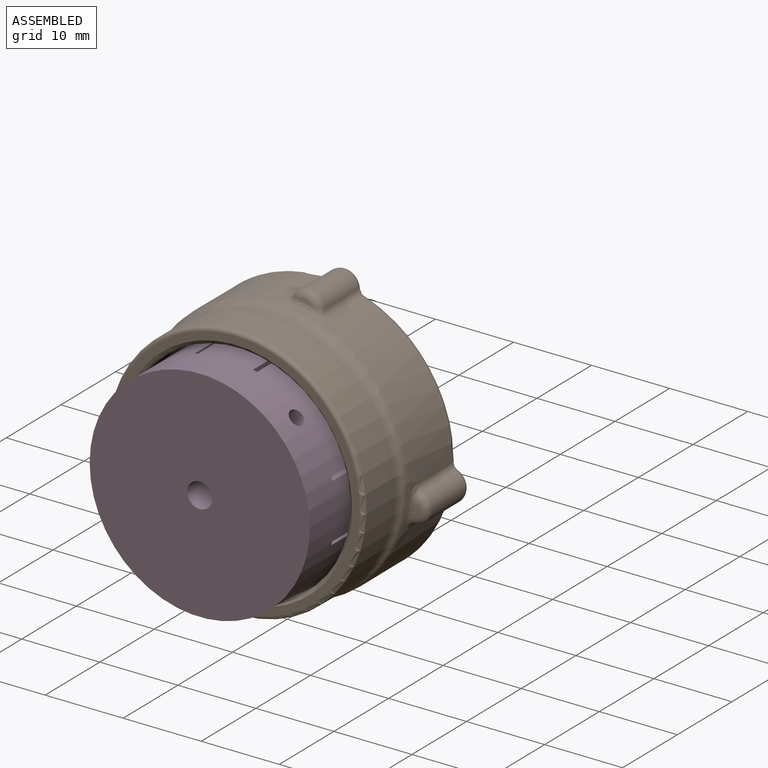
[diagram: assembled view]
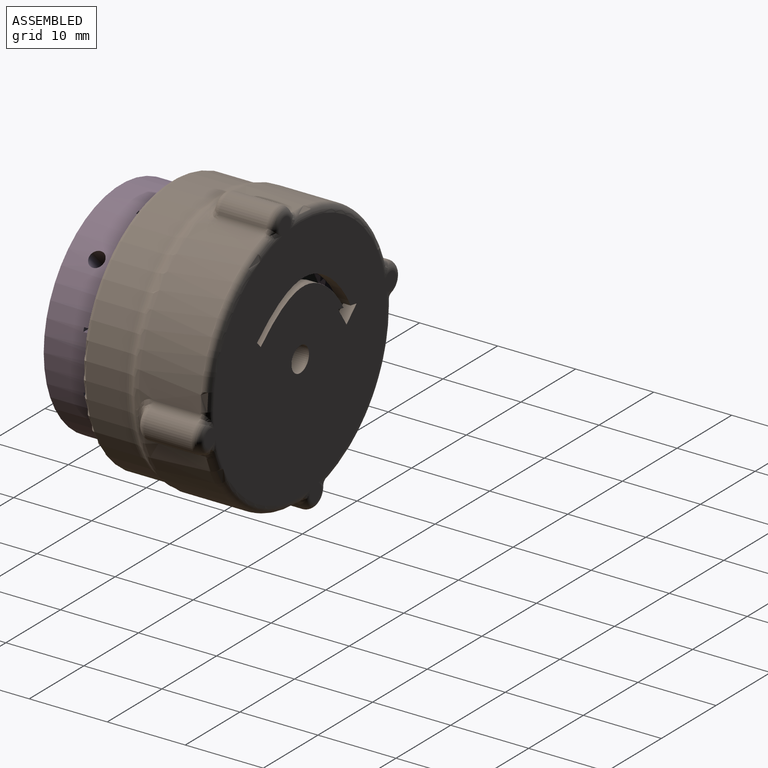
[diagram: assembled view, second angle]
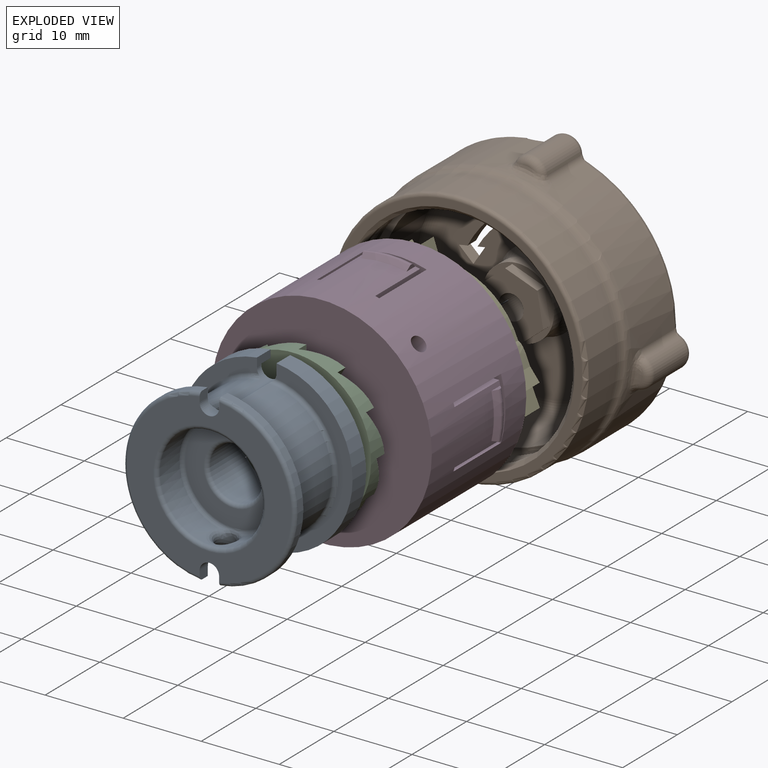
[diagram: exploded view]
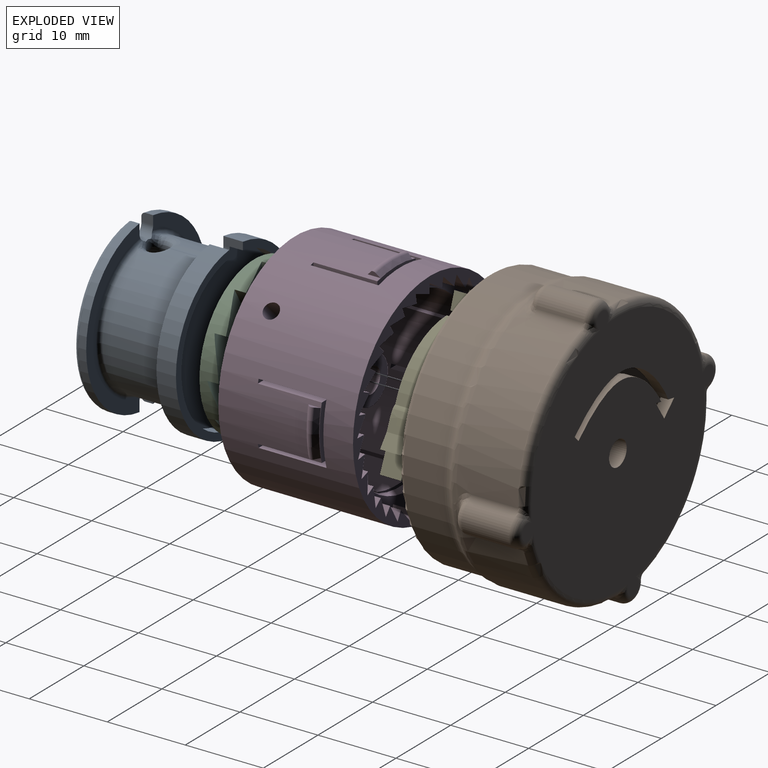
[diagram: exploded view, second angle]
ASSEMBLY  parts=5 mates=4
PART A: 52 faces, bbox 23.8x13x23.7 mm
  f0: cylinder r=1.25mm len=6.65mm, axis (0,1,0), area 11mm2, adj f10,f11,f12,f19,f23,f24,f25,f33
  f1: cylinder r=1.25mm len=2.5mm, axis (0,1,0), area 6.3mm2, adj f13,f14,f26,f27,f30,f34,f48,f49
  f2: cylinder r=3.4mm len=6.8mm, axis (0,-1,0), area 134.6mm2, adj f3,f19
  f3: torus R=3.9mm, axis (0,-1,0), area 17.7mm2, adj f2,f31
  f4: torus R=6.2mm, axis (0,-1,0), area 30.4mm2, adj f5,f31,f36,f41
  f5: cylinder r=6.7mm len=13.4mm, axis (0,-1,0), area 125.7mm2, adj f4,f6,f35,f40
  f6: torus R=7.2mm, axis (0,-1,0), area 34mm2, adj f5,f30
  f7: cylinder r=10mm len=19.84mm, axis (0,-1,0), area 49.1mm2, adj f8,f19,f46,f50
  f8: plane 21.86x9.75mm, normal (0,1,0), area 30.5mm2, adj f7,f9,f46,f50
  f9: cylinder r=11mm len=21.86mm, axis (0,-1,0), area 80.1mm2, adj f8,f10,f46,f50
  f10: plane 21.86x9.91mm, normal (0,-1,0), area 52.7mm2, adj f0,f9,f11,f46,f47,f50
  f11: torus R=9.2mm, axis (0,-1,0), area 20.6mm2, adj f0,f10,f25,f47
  f12: cylinder r=8.7mm len=17.35mm, axis (0,-1,0), area 198.5mm2, adj f0,f13,f24,f33,f38,f47
  f13: torus R=9.2mm, axis (0,-1,0), area 19.9mm2, adj f1,f12,f27,f34,f39,f42
  f14: plane 21.86x9.91mm, normal (0,1,0), area 52.7mm2, adj f1,f15,f26,f42,f43,f49
  f15: cylinder r=11mm len=21.86mm, axis (0,-1,0), area 32.1mm2, adj f14,f16,f43,f49
  f16: torus R=10.5mm, axis (0,-1,0), area 24.7mm2, adj f15,f30,f43,f49
  f17: cylinder r=1.25mm len=2.24mm, axis (0,0,1), area 0mm2, adj f38,f41
  f18: cylinder r=1.25mm len=2.24mm, axis (0,0,-1), area 0mm2, adj f33,f36
  f19: plane 20x19.84mm, normal (0,1,0), area 271.8mm2, adj f0,f2,f7,f20,f45,f46,f47,f50
  f20: cylinder r=10mm len=19.84mm, axis (0,-1,0), area 49.1mm2, adj f19,f21,f45,f51
  f21: plane 21.86x9.75mm, normal (0,1,0), area 30.5mm2, adj f20,f22,f45,f51
  f22: cylinder r=11mm len=21.86mm, axis (0,-1,0), area 80.1mm2, adj f21,f23,f45,f51
  f23: plane 21.86x9.91mm, normal (0,-1,0), area 52.7mm2, adj f0,f22,f24,f45,f47,f51
  f24: torus R=9.2mm, axis (0,-1,0), area 20.6mm2, adj f0,f12,f23,f47
  f25: cylinder r=8.7mm len=17.35mm, axis (0,-1,0), area 198.5mm2, adj f0,f11,f26,f33,f38,f47
  f26: torus R=9.2mm, axis (0,-1,0), area 19.9mm2, adj f1,f14,f25,f34,f39,f42
  f27: plane 21.86x9.91mm, normal (0,1,0), area 52.7mm2, adj f1,f13,f28,f42,f44,f48
  f28: cylinder r=11mm len=21.86mm, axis (0,-1,0), area 32.1mm2, adj f27,f29,f44,f48
  f29: torus R=10.5mm, axis (0,-1,0), area 24.7mm2, adj f28,f30,f44,f48
  f30: plane 21x20.85mm, normal (0,-1,0), area 175mm2, adj f1,f6,f16,f29,f42,f43,f44,f48
  f31: plane 12.4x12.4mm, normal (0,-1,0), area 73mm2, adj f3,f4
  f32: cylinder r=1.25mm len=2.24mm, axis (0,0,-1), area 0mm2, adj f34,f35
  f33: bspline ~5.1x3.25mm, area 11.3mm2, adj f0,f12,f18,f25,f34,f35
  f34: bspline ~4.55x1.49mm, area 3.4mm2, adj f1,f13,f26,f32,f33
  f35: bspline ~3.93x3.25mm, area 9mm2, adj f5,f32,f33,f36
  f36: bspline ~3.51x0.98mm, area 2.7mm2, adj f4,f18,f35
  f37: cylinder r=1.25mm len=2.24mm, axis (0,0,1), area 0mm2, adj f39,f40
  f38: bspline ~5.08x3.25mm, area 11.1mm2, adj f12,f17,f25,f39,f40,f47
  f39: bspline ~4.55x1.49mm, area 3.8mm2, adj f13,f26,f37,f38,f42
  f40: bspline ~3.93x3.25mm, area 9mm2, adj f5,f37,f38,f41
  f41: bspline ~3.51x0.98mm, area 2.7mm2, adj f4,f17,f40
  f42: cylinder r=1.25mm len=2.5mm, axis (0,1,0), area 6.2mm2, adj f13,f14,f26,f27,f30,f39,f43,f44
  f43: plane 1.53x1.2mm, normal (1,0,0), area 1.7mm2, adj f14,f15,f16,f30,f42
  f44: plane 1.53x1.2mm, normal (-1,0,0), area 1.7mm2, adj f27,f28,f29,f30,f42
  f45: plane 2.5x1.18mm, normal (-1,0,0), area 2.7mm2, adj f19,f20,f21,f22,f23,f47
  f46: plane 2.5x1.18mm, normal (1,0,0), area 2.7mm2, adj f7,f8,f9,f10,f19,f47
  f47: cylinder r=1.25mm len=6.65mm, axis (0,1,0), area 11.2mm2, adj f10,f11,f12,f19,f23,f24,f25,f38
  f48: plane 1.53x1.2mm, normal (-1,0,0), area 1.7mm2, adj f1,f27,f28,f29,f30
  f49: plane 1.53x1.2mm, normal (1,0,0), area 1.7mm2, adj f1,f14,f15,f16,f30
  f50: plane 2.5x1.18mm, normal (1,0,0), area 2.7mm2, adj f0,f7,f8,f9,f10,f19
  f51: plane 2.5x1.18mm, normal (-1,0,0), area 2.7mm2, adj f0,f19,f20,f21,f22,f23
PART B: 88 faces, bbox 36.8x16.5x36.8 mm
  f0: torus R=7.02mm, axis (0,-1,0), area 76.8mm2, adj f23,f31
  f1: cylinder r=1mm len=6mm, axis (0,-1,0), area 6.6mm2, adj f10,f29,f74,f75
  f2: cylinder r=1mm len=6mm, axis (0,1,0), area 6.6mm2, adj f26,f43,f56,f57
  f3: torus R=1.06mm, axis (0,1,0), area 5.8mm2, adj f9,f68,f69,f70,f71
  f4: torus R=1.06mm, axis (0,1,0), area 5.8mm2, adj f10,f75,f76,f77,f78
  f5: torus R=1.06mm, axis (0,1,0), area 8.3mm2, adj f35,f44,f58,f65
  f6: torus R=1.06mm, axis (0,1,0), area 8.3mm2, adj f10,f35,f74,f80
  f7: torus R=15.9mm, axis (0,1,0), area 35.5mm2, adj f29,f35,f73,f74
  f8: torus R=1.06mm, axis (0,1,0), area 9.8mm2, adj f9,f35,f66,f73
  f9: cylinder r=2.06mm len=6mm, axis (0,1,0), area 31.4mm2, adj f3,f8,f67,f72
  f10: cylinder r=2.06mm len=6mm, axis (0,1,0), area 31.4mm2, adj f1,f4,f6,f79
  f11: cylinder r=14.44mm len=28.88mm, axis (0,-1,0), area 607.8mm2, adj f24,f34
  f12: torus R=14.64mm, axis (0,-1,0), area 187.2mm2, adj f13,f34
  f13: torus R=15.39mm, axis (0,-1,0), area 72.9mm2, adj f12,f14
  f14: cylinder r=14.64mm len=29.28mm, axis (0,-1,0), area 83mm2, adj f13,f15
  f15: torus R=15.39mm, axis (0,-1,0), area 72.9mm2, adj f14,f16
  f16: torus R=14.64mm, axis (0,-1,0), area 187.2mm2, adj f15,f33
  f17: cylinder r=14.44mm len=28.88mm, axis (0,-1,0), area 68mm2, adj f18,f33
  f18: cone r=14.94mm half-angle=45deg, axis (0,-1,0), area 65.3mm2, adj f17,f32
  f19: torus R=15.94mm, axis (0,-1,0), area 80.2mm2, adj f20,f32
  f20: cylinder r=16.44mm len=32.88mm, axis (0,-1,0), area 540.7mm2, adj f19,f21
  f21: torus R=18.44mm, axis (0,-1,0), area 100.6mm2, adj f20,f22
  f22: torus R=14.9mm, axis (0,-1,0), area 101.9mm2, adj f21,f26,f27,f28,f29,f54,f61,f69
  f23: cylinder r=4.6mm len=9.2mm, axis (0,-1,0), area 43.4mm2, adj f0,f30
  f24: torus R=12.44mm, axis (0,-1,0), area 270.7mm2, adj f11,f31
  f25: cylinder r=1.6mm len=6.73mm, axis (0,-1,0), area 67.7mm2, adj f35,f36
  f26: cylinder r=16.9mm len=19.94mm, axis (0,-1,0), area 167.1mm2, adj f2,f22,f47,f55,f56,f59,f60
  f27: cylinder r=16.9mm len=19.94mm, axis (0,-1,0), area 168.4mm2, adj f22,f46,f52,f53,f78,f79
  f28: cylinder r=16.9mm len=19.94mm, axis (0,-1,0), area 167.1mm2, adj f22,f45,f62,f63,f64,f67,f68
  f29: cylinder r=16.9mm len=19.94mm, axis (0,-1,0), area 167.1mm2, adj f1,f7,f22,f70,f71,f72,f75,f76
  f30: plane 9.2x9.2mm, normal (0,-1,0), area 16.5mm2, adj f23,f37,f38,f39,f40,f41,f42
  f31: plane 24.88x24.88mm, normal (0,-1,0), area 376.7mm2, adj f0,f24,f81,f82,f83,f84,f85,f86
  f32: plane 31.88x31.88mm, normal (0,-1,0), area 97mm2, adj f18,f19
  f33: plane 29.28x29.28mm, normal (0,1,0), area 18.3mm2, adj f16,f17
  f34: plane 29.28x29.28mm, normal (0,-1,0), area 18.3mm2, adj f11,f12
  f35: plane 33.66x33.66mm, normal (0,1,0), area 776.4mm2, adj f5,f6,f7,f8,f25,f45,f46,f47
  f36: plane 8.78x7.6mm, normal (0,-1,0), area 42mm2, adj f25,f37,f38,f39,f40,f41,f42
  f37: plane 3.8x2.19mm, normal (0.5,0,0.87), area 5.7mm2, adj f30,f36,f38,f42
  f38: plane 3.8x2.19mm, normal (-0.5,0,0.87), area 5.7mm2, adj f30,f36,f37,f39
  f39: plane 4.39x1.3mm, normal (-1,0,0), area 5.7mm2, adj f30,f36,f38,f40
  f40: plane 3.8x2.19mm, normal (-0.5,0,-0.87), area 5.7mm2, adj f30,f36,f39,f41
  f41: plane 3.8x2.19mm, normal (0.5,0,-0.87), area 5.7mm2, adj f30,f36,f40,f42
  f42: plane 4.39x1.3mm, normal (1,0,0), area 5.7mm2, adj f30,f36,f37,f41
  f43: cylinder r=2.06mm len=6mm, axis (0,1,0), area 31.4mm2, adj f2,f48,f49,f52
  f44: cylinder r=2.06mm len=6mm, axis (0,1,0), area 31.4mm2, adj f5,f50,f59,f64
  f45: torus R=15.9mm, axis (0,1,0), area 35.5mm2, adj f28,f35,f65,f66
  f46: torus R=15.9mm, axis (0,1,0), area 35.5mm2, adj f27,f35,f51,f80
  f47: torus R=15.9mm, axis (0,1,0), area 35.5mm2, adj f26,f35,f57,f58
  f48: torus R=1.06mm, axis (0,1,0), area 9.8mm2, adj f35,f43,f51,f57
  f49: torus R=1.06mm, axis (0,1,0), area 5.8mm2, adj f43,f53,f54,f55,f56
  f50: torus R=1.06mm, axis (0,1,0), area 5.8mm2, adj f44,f60,f61,f62,f63
  f51: bspline ~2.28x1.05mm, area 0.9mm2, adj f46,f48,f52
  f52: cylinder r=1mm len=6mm, axis (0,-1,0), area 6.6mm2, adj f27,f43,f51,f53
  f53: bspline ~1.88x1.53mm, area 2.3mm2, adj f27,f49,f52,f54
  f54: bspline ~2.47x1.53mm, area 3.3mm2, adj f22,f49,f53,f55
  f55: cylinder r=1mm len=0.95mm, axis (0.93,0.26,-0.26), area 0mm2, adj f26,f49,f54,f56
  f56: bspline ~1.88x1.87mm, area 2.2mm2, adj f2,f26,f49,f55
  f57: bspline ~1.84x1.75mm, area 0.9mm2, adj f2,f47,f48
  f58: bspline ~2.28x1.05mm, area 0.9mm2, adj f5,f47,f59
  f59: cylinder r=1mm len=6mm, axis (0,-1,0), area 6.6mm2, adj f26,f44,f58,f60
  f60: bspline ~1.88x1.53mm, area 2.3mm2, adj f26,f50,f59,f61
  f61: bspline ~2.47x1.53mm, area 3.3mm2, adj f22,f50,f60,f62
  f62: cylinder r=1mm len=0.95mm, axis (0.26,0.26,0.93), area 0mm2, adj f28,f50,f61,f63
  f63: bspline ~1.88x1.87mm, area 2.2mm2, adj f28,f50,f62,f64
  f64: cylinder r=1mm len=6mm, axis (0,1,0), area 6.6mm2, adj f28,f44,f63,f65
  f65: bspline ~1.84x1.75mm, area 1.4mm2, adj f5,f45,f64
  f66: bspline ~2.28x1.05mm, area 0.9mm2, adj f8,f45,f67
  f67: cylinder r=1mm len=6mm, axis (0,-1,0), area 6.6mm2, adj f9,f28,f66,f68
  f68: bspline ~1.88x1.53mm, area 2.3mm2, adj f3,f28,f67,f69
  f69: bspline ~2.47x1.53mm, area 3.3mm2, adj f3,f22,f68,f70
  f70: cylinder r=1mm len=0.95mm, axis (-0.93,0.26,0.26), area 0mm2, adj f3,f29,f69,f71
  f71: bspline ~1.88x1.87mm, area 2.2mm2, adj f3,f29,f70,f72
  f72: cylinder r=1mm len=6mm, axis (0,1,0), area 6.6mm2, adj f9,f29,f71,f73
  f73: bspline ~1.84x1.75mm, area 0.9mm2, adj f7,f8,f72
  f74: bspline ~2.28x1.05mm, area 0.9mm2, adj f1,f6,f7
  f75: bspline ~1.87x1.46mm, area 2.2mm2, adj f1,f4,f29,f76
  f76: cylinder r=1mm len=0.96mm, axis (-0.4,-0.25,-0.88), area 0mm2, adj f4,f29,f75,f77
  f77: bspline ~2.47x1.53mm, area 3.3mm2, adj f4,f22,f76,f78
  f78: bspline ~1.91x1.88mm, area 2.3mm2, adj f4,f27,f77,f79
  f79: cylinder r=1mm len=6mm, axis (0,1,0), area 6.6mm2, adj f10,f27,f78,f80
  f80: bspline ~1.84x1.75mm, area 1.4mm2, adj f6,f46,f79
  f81: extruded ~15.16x5.43mm, area 28.3mm2, adj f31,f35,f82,f87
  f82: plane 1.53x1.01mm, normal (0,0,-1), area 1.5mm2, adj f31,f35,f81,f83
  f83: plane 2.03x1.9mm, normal (-0.73,0,0.68), area 4.3mm2, adj f31,f35,f82,f84
  f84: plane 2.03x1.53mm, normal (0.8,0,0.6), area 3.9mm2, adj f31,f35,f83,f85
  f85: plane 1.53x1.12mm, normal (0,0,-1), area 1.7mm2, adj f31,f35,f84,f86
  f86: extruded ~17.24x5.83mm, area 32.3mm2, adj f31,f35,f85,f87
  f87: plane 1.53x0.79mm, normal (-0.61,0,0.79), area 1.5mm2, adj f31,f35,f81,f86
PART C: 52 faces, bbox 21.9x21.9x2.5 mm
  f0: cylinder r=10mm len=20mm, axis (0,0,-1), area 117.5mm2, adj f14,f16,f17,f18,f19,f20,f21,f22
  f1: cylinder r=6mm len=3mm, axis (0,0,-1), area 1.8mm2, adj f12,f16,f29,f46
  f2: cylinder r=6mm len=2.2mm, axis (0,0,-1), area 1.8mm2, adj f12,f18,f33,f47
  f3: cylinder r=6mm len=3mm, axis (0,0,-1), area 1.8mm2, adj f12,f21,f32,f48
  f4: cylinder r=6mm len=3mm, axis (0,0,-1), area 1.8mm2, adj f12,f22,f30,f49
  f5: cylinder r=6mm len=2.2mm, axis (0,0,-1), area 1.8mm2, adj f12,f20,f31,f50
  f6: cylinder r=6mm len=3mm, axis (0,0,-1), area 1.8mm2, adj f12,f19,f37,f51
  f7: cylinder r=6mm len=3mm, axis (0,0,-1), area 1.8mm2, adj f12,f25,f36,f40
  f8: cylinder r=6mm len=2.2mm, axis (0,0,-1), area 1.8mm2, adj f12,f26,f34,f41
  f9: cylinder r=6mm len=3mm, axis (0,0,-1), area 1.8mm2, adj f12,f23,f35,f42
  f10: cylinder r=6mm len=3mm, axis (0,0,-1), area 1.8mm2, adj f12,f17,f28,f45
  f11: cylinder r=6mm len=3mm, axis (0,0,-1), area 1.8mm2, adj f12,f24,f39,f43
  f12: plane 12x12mm, normal (0,0,1), area 76.8mm2, adj f1,f2,f3,f4,f5,f6,f7,f8
  f13: cylinder r=3.4mm len=6.8mm, axis (0,0,-1), area 21.4mm2, adj f12,f14
  f14: plane 20x20mm, normal (0,0,-1), area 277.8mm2, adj f0,f13
  f15: cylinder r=6mm len=2.2mm, axis (0,0,-1), area 1.8mm2, adj f12,f27,f38,f44
  f16: plane 4.42x2.18mm, normal (-0.35,0,0.94), area 9.4mm2, adj f0,f1,f17,f46
  f17: plane 4.03x1.48mm, normal (1,0,0), area 5.2mm2, adj f0,f10,f16,f45
  f18: plane 4.91x3.77mm, normal (-0.3,-0.17,0.94), area 9.4mm2, adj f0,f2,f29,f47
  f19: plane 4.35x4.09mm, normal (0.3,-0.17,0.94), area 9.4mm2, adj f0,f6,f31,f51
  f20: plane 4.91x3.77mm, normal (0.17,-0.3,0.94), area 9.4mm2, adj f0,f5,f30,f50
  f21: plane 4.35x4.09mm, normal (-0.17,-0.3,0.94), area 9.4mm2, adj f0,f3,f33,f48
  f22: plane 4.42x2.18mm, normal (0,-0.35,0.94), area 9.4mm2, adj f0,f4,f32,f49
  f23: plane 4.35x4.09mm, normal (0.17,0.3,0.94), area 9.4mm2, adj f0,f9,f34,f42
  f24: plane 4.42x2.18mm, normal (0,0.35,0.94), area 9.4mm2, adj f0,f11,f35,f43
  f25: plane 4.42x2.18mm, normal (0.35,0,0.94), area 9.4mm2, adj f0,f7,f37,f40
  f26: plane 4.91x3.77mm, normal (0.3,0.17,0.94), area 9.4mm2, adj f0,f8,f36,f41
  f27: plane 4.91x3.77mm, normal (-0.17,0.3,0.94), area 9.4mm2, adj f0,f15,f39,f44
  f28: plane 4.35x4.09mm, normal (-0.3,0.17,0.94), area 9.4mm2, adj f0,f10,f38,f45
  f29: plane 3.49x2.03mm, normal (0.87,0.5,0), area 5.2mm2, adj f0,f1,f18,f46
  f30: plane 3.49x2.03mm, normal (-0.5,0.87,0), area 5.2mm2, adj f0,f4,f20,f49
  f31: plane 3.49x2.03mm, normal (-0.87,0.5,0), area 5.2mm2, adj f0,f5,f19,f50
  f32: plane 4.03x1.48mm, normal (0,1,0), area 5.2mm2, adj f0,f3,f22,f48
  f33: plane 3.49x2.03mm, normal (0.5,0.87,0), area 5.2mm2, adj f0,f2,f21,f47
  f34: plane 3.49x2.03mm, normal (-0.5,-0.87,0), area 5.2mm2, adj f0,f8,f23,f41
  f35: plane 4.03x1.48mm, normal (0,-1,0), area 5.2mm2, adj f0,f9,f24,f42
  f36: plane 3.49x2.03mm, normal (-0.87,-0.5,0), area 5.2mm2, adj f0,f7,f26,f40
  f37: plane 4.03x1.48mm, normal (-1,0,0), area 5.2mm2, adj f0,f6,f25,f51
  f38: plane 3.49x2.03mm, normal (0.87,-0.5,0), area 5.2mm2, adj f0,f15,f28,f44
  f39: plane 3.49x2.03mm, normal (0.5,-0.87,0), area 5.2mm2, adj f0,f11,f27,f43
  f40: cylinder r=11mm len=4.57mm, axis (0,1,0), area 8.3mm2, adj f0,f7,f25,f36
  f41: cylinder r=11mm len=5.38mm, axis (-0.5,0.87,0), area 8.3mm2, adj f0,f8,f26,f34
  f42: cylinder r=11mm len=5.38mm, axis (-0.87,0.5,0), area 8.3mm2, adj f0,f9,f23,f35
  f43: cylinder r=11mm len=4.57mm, axis (-1,0,0), area 8.3mm2, adj f0,f11,f24,f39
  f44: cylinder r=11mm len=5.38mm, axis (-0.87,-0.5,0), area 8.3mm2, adj f0,f15,f27,f38
  f45: cylinder r=11mm len=5.38mm, axis (-0.5,-0.87,0), area 8.3mm2, adj f0,f10,f17,f28
  f46: cylinder r=11mm len=4.57mm, axis (0,-1,0), area 8.3mm2, adj f0,f1,f16,f29
  f47: cylinder r=11mm len=5.38mm, axis (0.5,-0.87,0), area 8.3mm2, adj f0,f2,f18,f33
  f48: cylinder r=11mm len=5.38mm, axis (0.87,-0.5,0), area 8.3mm2, adj f0,f3,f21,f32
  f49: cylinder r=11mm len=4.57mm, axis (1,0,0), area 8.3mm2, adj f0,f4,f22,f30
  f50: cylinder r=11mm len=5.38mm, axis (0.87,0.5,0), area 8.3mm2, adj f0,f5,f20,f31
  f51: cylinder r=11mm len=5.38mm, axis (0.5,0.87,0), area 8.3mm2, adj f0,f6,f19,f37
PART D: 130 faces, bbox 31.9x17.3x31.9 mm
  f0: cylinder r=14.1mm len=28.2mm, axis (0,-1,0), area 1436.2mm2, adj f68,f69,f70,f71,f75,f78,f79,f80
  f1: cylinder r=11.3mm len=22.6mm, axis (0,-1,0), area 865.6mm2, adj f77,f78,f79,f80,f81,f82,f83,f84
  f2: plane 2.5x1.24mm, normal (-0.98,0,-0.19), area 3.1mm2, adj f3,f67,f126,f127
  f3: plane 2.5x2.3mm, normal (0.53,0,-0.85), area 6.8mm2, adj f2,f4,f126,f127
  f4: plane 2.5x1.26mm, normal (-1,0,0), area 3.1mm2, adj f3,f5,f126,f127
  f5: plane 2.53x2.5mm, normal (0.36,0,-0.93), area 6.8mm2, adj f4,f6,f126,f127
  f6: plane 2.5x1.24mm, normal (-0.98,0,0.19), area 3.1mm2, adj f5,f7,f126,f127
  f7: plane 2.67x2.5mm, normal (0.18,0,-0.98), area 6.8mm2, adj f6,f8,f126,f127
  f8: plane 2.5x1.17mm, normal (-0.93,0,0.37), area 3.1mm2, adj f7,f9,f126,f127
  f9: plane 2.72x2.5mm, normal (-0.01,0,-1), area 6.8mm2, adj f8,f10,f126,f127
  f10: plane 2.5x1.06mm, normal (-0.84,0,0.54), area 3.1mm2, adj f9,f11,f126,f127
  f11: plane 2.66x2.5mm, normal (-0.2,0,-0.98), area 6.8mm2, adj f10,f12,f126,f127
  f12: plane 2.5x0.91mm, normal (-0.72,0,0.69), area 3.1mm2, adj f11,f13,f126,f127
  f13: plane 2.51x2.5mm, normal (-0.38,0,-0.92), area 6.8mm2, adj f12,f14,f126,f127
  f14: plane 2.5x1.03mm, normal (-0.58,0,0.81), area 3.1mm2, adj f13,f15,f126,f127
  f15: plane 2.5x2.27mm, normal (-0.55,0,-0.84), area 6.8mm2, adj f14,f16,f126,f127
  f16: plane 2.5x1.15mm, normal (-0.42,0,0.91), area 3.1mm2, adj f15,f17,f126,f127
  f17: plane 2.5x1.95mm, normal (-0.7,0,-0.72), area 6.8mm2, adj f16,f18,f126,f127
  f18: plane 2.5x1.22mm, normal (-0.24,0,0.97), area 3.1mm2, adj f17,f19,f126,f127
  f19: plane 2.5x2.23mm, normal (-0.82,0,-0.57), area 6.8mm2, adj f18,f20,f126,f127
  f20: plane 2.5x1.26mm, normal (-0.05,0,1), area 3.1mm2, adj f19,f21,f126,f127
  f21: plane 2.5x2.48mm, normal (-0.91,0,-0.41), area 6.8mm2, adj f20,f22,f126,f127
  f22: plane 2.5x1.25mm, normal (0.14,0,0.99), area 3.1mm2, adj f21,f23,f126,f127
  f23: plane 2.65x2.5mm, normal (-0.97,0,-0.23), area 6.8mm2, adj f22,f24,f126,f127
  f24: plane 2.5x1.19mm, normal (0.33,0,0.95), area 3.1mm2, adj f23,f25,f126,f127
  f25: plane 2.72x2.5mm, normal (-1,0,-0.04), area 6.8mm2, adj f24,f26,f126,f127
  f26: plane 2.5x1.09mm, normal (0.5,0,0.87), area 3.1mm2, adj f25,f27,f126,f127
  f27: plane 2.69x2.5mm, normal (-0.99,0,0.15), area 6.8mm2, adj f26,f28,f126,f127
  f28: plane 2.5x0.95mm, normal (0.65,0,0.76), area 3.1mm2, adj f27,f29,f126,f127
  f29: plane 2.56x2.5mm, normal (-0.94,0,0.34), area 6.8mm2, adj f28,f30,f126,f127
  f30: plane 2.5x0.99mm, normal (0.79,0,0.62), area 3.1mm2, adj f29,f31,f126,f127
  f31: plane 2.5x2.34mm, normal (-0.86,0,0.51), area 6.8mm2, adj f30,f32,f126,f127
  f32: plane 2.5x1.12mm, normal (0.89,0,0.46), area 3.1mm2, adj f31,f33,f126,f127
  f33: plane 2.5x2.04mm, normal (-0.75,0,0.66), area 6.8mm2, adj f32,f34,f126,f127
  f34: plane 2.5x1.21mm, normal (0.96,0,0.28), area 3.1mm2, adj f33,f35,f126,f127
  f35: plane 2.5x2.15mm, normal (-0.61,0,0.79), area 6.8mm2, adj f34,f36,f126,f127
  f36: plane 2.5x1.25mm, normal (1,0,0.1), area 3.1mm2, adj f35,f37,f126,f127
  f37: plane 2.5x2.43mm, normal (-0.45,0,0.89), area 6.8mm2, adj f36,f38,f126,f127
  f38: plane 2.5x1.25mm, normal (1,0,-0.1), area 3.1mm2, adj f37,f39,f126,f127
  f39: plane 2.61x2.5mm, normal (-0.27,0,0.96), area 6.8mm2, adj f38,f40,f126,f127
  f40: plane 2.5x1.21mm, normal (0.96,0,-0.28), area 3.1mm2, adj f39,f41,f126,f127
  f41: plane 2.71x2.5mm, normal (-0.09,0,1), area 6.8mm2, adj f40,f42,f126,f127
  f42: plane 2.5x1.12mm, normal (0.89,0,-0.46), area 3.1mm2, adj f41,f43,f126,f127
  f43: plane 2.7x2.5mm, normal (0.11,0,0.99), area 6.8mm2, adj f42,f44,f126,f127
  f44: plane 2.5x0.99mm, normal (0.79,0,-0.62), area 3.1mm2, adj f43,f45,f126,f127
  f45: plane 2.6x2.5mm, normal (0.29,0,0.96), area 6.8mm2, adj f44,f46,f126,f127
  f46: plane 2.5x0.95mm, normal (0.65,0,-0.76), area 3.1mm2, adj f45,f47,f126,f127
  f47: plane 2.5x2.4mm, normal (0.47,0,0.88), area 6.8mm2, adj f46,f48,f126,f127
  f48: plane 2.5x1.09mm, normal (0.5,0,-0.87), area 3.1mm2, adj f47,f49,f126,f127
  f49: plane 2.5x2.12mm, normal (0.63,0,0.78), area 6.8mm2, adj f48,f50,f126,f127
  f50: plane 2.5x1.19mm, normal (0.33,0,-0.95), area 3.1mm2, adj f49,f51,f126,f127
  f51: plane 2.5x2.07mm, normal (0.76,0,0.65), area 6.8mm2, adj f50,f52,f126,f127
  f52: plane 2.5x1.25mm, normal (0.14,0,-0.99), area 3.1mm2, adj f51,f53,f126,f127
  f53: plane 2.5x2.37mm, normal (0.87,0,0.49), area 6.8mm2, adj f52,f54,f126,f127
  f54: plane 2.5x1.26mm, normal (-0.05,0,-1), area 3.1mm2, adj f53,f55,f126,f127
  f55: plane 2.58x2.5mm, normal (0.95,0,0.32), area 6.8mm2, adj f54,f56,f126,f127
  f56: plane 2.5x1.22mm, normal (-0.24,0,-0.97), area 3.1mm2, adj f55,f57,f126,f127
  f57: plane 2.69x2.5mm, normal (0.99,0,0.13), area 6.8mm2, adj f56,f58,f126,f127
  f58: plane 2.5x1.15mm, normal (-0.42,0,-0.91), area 3.1mm2, adj f57,f59,f126,f127
  f59: plane 2.71x2.5mm, normal (1,0,-0.06), area 6.8mm2, adj f58,f60,f126,f127
  f60: plane 2.5x1.03mm, normal (-0.58,0,-0.81), area 3.1mm2, adj f59,f61,f126,f127
  f61: plane 2.63x2.5mm, normal (0.97,0,-0.25), area 6.8mm2, adj f60,f62,f126,f127
  f62: plane 2.5x0.91mm, normal (-0.72,0,-0.69), area 3.1mm2, adj f61,f63,f126,f127
  f63: plane 2.5x2.46mm, normal (0.91,0,-0.42), area 6.8mm2, adj f62,f64,f126,f127
  f64: plane 2.5x1.06mm, normal (-0.84,0,-0.54), area 3.1mm2, adj f63,f65,f126,f127
  f65: plane 2.5x2.2mm, normal (0.81,0,-0.59), area 6.8mm2, adj f64,f66,f126,f127
  f66: plane 2.5x1.17mm, normal (-0.93,0,-0.37), area 3.1mm2, adj f65,f67,f126,f127
  f67: plane 2.5x1.99mm, normal (0.68,0,-0.73), area 6.8mm2, adj f2,f66,f126,f127
  f68: cone r=14.68mm half-angle=47.6deg, axis (0,1,0), area 4.7mm2, adj f0,f123,f124,f125
  f69: cone r=14.68mm half-angle=47.6deg, axis (0,1,0), area 4.7mm2, adj f0,f119,f120,f121
  f70: cone r=14.68mm half-angle=47.6deg, axis (0,1,0), area 4.7mm2, adj f0,f115,f116,f117
  f71: cone r=14.68mm half-angle=47.6deg, axis (0,1,0), area 4.7mm2, adj f0,f87,f88,f89
  f72: torus R=5mm, axis (0,-1,0), area 73.6mm2, adj f73,f77
  f73: cylinder r=3mm len=6mm, axis (0,-1,0), area 113.1mm2, adj f72,f76
  f74: cylinder r=1.6mm len=9.77mm, axis (0,-1,0), area 98.2mm2, adj f75,f76
  f75: plane 28.2x28.2mm, normal (0,-1,0), area 616.5mm2, adj f0,f74
  f76: plane 6x6mm, normal (0,1,0), area 20.2mm2, adj f73,f74
  f77: plane 22.6x22.6mm, normal (0,1,0), area 322.6mm2, adj f1,f72
  f78: plane 3.09x0.5mm, normal (0,1,0), area 1.5mm2, adj f0,f1,f79,f85
  f79: plane 8.7x2.95mm, normal (1,0,0), area 25.7mm2, adj f0,f1,f78,f80
  f80: plane 8x3.53mm, normal (0,-1,0), area 22.8mm2, adj f0,f1,f79,f81
  f81: plane 8.7x2.95mm, normal (-1,0,0), area 25.7mm2, adj f0,f1,f80,f82
  f82: plane 3.09x0.5mm, normal (0,1,0), area 1.5mm2, adj f0,f1,f81,f83
  f83: plane 8.2x2.91mm, normal (1,0,0), area 23.9mm2, adj f0,f1,f82,f84
  f84: plane 7x3.36mm, normal (0,1,0), area 19.9mm2, adj f0,f1,f83,f85
  f85: plane 8.2x2.91mm, normal (-1,0,0), area 23.9mm2, adj f0,f1,f78,f84
  f86: cone r=14.09mm half-angle=44deg, axis (0,-1,0), area 4.3mm2, adj f0,f87,f88,f89
  f87: plane 1.6x0.61mm, normal (0.98,0,-0.21), area 0.6mm2, adj f0,f71,f86,f89
  f88: plane 1.6x0.61mm, normal (-0.98,0,-0.21), area 0.6mm2, adj f0,f71,f86,f89
  f89: torus R=14.19mm, axis (0,-1,0), area 3.6mm2, adj f71,f86,f87,f88
  f90: plane 3.09x0.5mm, normal (0,1,0), area 1.5mm2, adj f0,f1,f91,f97
  f91: plane 8.7x2.95mm, normal (0,0,-1), area 25.7mm2, adj f0,f1,f90,f92
  f92: plane 8x3.53mm, normal (0,-1,0), area 22.8mm2, adj f0,f1,f91,f93
  f93: plane 8.7x2.95mm, normal (0,0,1), area 25.7mm2, adj f0,f1,f92,f94
  f94: plane 3.09x0.5mm, normal (0,1,0), area 1.5mm2, adj f0,f1,f93,f95
  f95: plane 8.2x2.91mm, normal (0,0,-1), area 23.9mm2, adj f0,f1,f94,f96
  f96: plane 7x3.36mm, normal (0,1,0), area 19.9mm2, adj f0,f1,f95,f97
  f97: plane 8.2x2.91mm, normal (0,0,1), area 23.9mm2, adj f0,f1,f90,f96
  f98: plane 3.09x0.5mm, normal (0,1,0), area 1.5mm2, adj f0,f1,f99,f105
  f99: plane 8.7x2.95mm, normal (-1,0,0), area 25.7mm2, adj f0,f1,f98,f100
  f100: plane 8x3.53mm, normal (0,-1,0), area 22.8mm2, adj f0,f1,f99,f101
  f101: plane 8.7x2.95mm, normal (1,0,0), area 25.7mm2, adj f0,f1,f100,f102
  f102: plane 3.09x0.5mm, normal (0,1,0), area 1.5mm2, adj f0,f1,f101,f103
  f103: plane 8.2x2.91mm, normal (-1,0,0), area 23.9mm2, adj f0,f1,f102,f104
  f104: plane 7x3.36mm, normal (0,1,0), area 19.9mm2, adj f0,f1,f103,f105
  f105: plane 8.2x2.91mm, normal (1,0,0), area 23.9mm2, adj f0,f1,f98,f104
  f106: plane 3.09x0.5mm, normal (0,1,0), area 1.5mm2, adj f0,f1,f107,f113
  f107: plane 8.7x2.95mm, normal (0,0,1), area 25.7mm2, adj f0,f1,f106,f108
  f108: plane 8x3.53mm, normal (0,-1,0), area 22.8mm2, adj f0,f1,f107,f109
  f109: plane 8.7x2.95mm, normal (0,0,-1), area 25.7mm2, adj f0,f1,f108,f110
  f110: plane 3.09x0.5mm, normal (0,1,0), area 1.5mm2, adj f0,f1,f109,f111
  f111: plane 8.2x2.91mm, normal (0,0,1), area 23.9mm2, adj f0,f1,f110,f112
  f112: plane 7x3.36mm, normal (0,1,0), area 19.9mm2, adj f0,f1,f111,f113
  f113: plane 8.2x2.91mm, normal (0,0,-1), area 23.9mm2, adj f0,f1,f106,f112
  f114: cone r=14.09mm half-angle=44deg, axis (0,-1,0), area 4.3mm2, adj f0,f115,f116,f117
  f115: plane 1.6x0.61mm, normal (0.21,0,0.98), area 0.6mm2, adj f0,f70,f114,f117
  f116: plane 1.6x0.61mm, normal (0.21,0,-0.98), area 0.6mm2, adj f0,f70,f114,f117
  f117: torus R=14.19mm, axis (0,-1,0), area 3.6mm2, adj f70,f114,f115,f116
  f118: cone r=14.09mm half-angle=44deg, axis (0,-1,0), area 4.3mm2, adj f0,f119,f120,f121
  f119: plane 1.6x0.61mm, normal (-0.98,0,0.21), area 0.6mm2, adj f0,f69,f118,f121
  f120: plane 1.6x0.61mm, normal (0.98,0,0.21), area 0.6mm2, adj f0,f69,f118,f121
  f121: torus R=14.19mm, axis (0,-1,0), area 3.6mm2, adj f69,f118,f119,f120
  f122: cone r=14.09mm half-angle=44deg, axis (0,-1,0), area 4.3mm2, adj f0,f123,f124,f125
  f123: plane 1.6x0.61mm, normal (-0.21,0,-0.98), area 0.6mm2, adj f0,f68,f122,f125
  f124: plane 1.6x0.61mm, normal (-0.21,0,0.98), area 0.6mm2, adj f0,f68,f122,f125
  f125: torus R=14.19mm, axis (0,-1,0), area 3.6mm2, adj f68,f122,f123,f124
  f126: plane 26.77x26.75mm, normal (0,1,0), area 106.9mm2, adj f1,f2,f3,f4,f5,f6,f7,f8
  f127: plane 28.2x28.2mm, normal (0,1,0), area 116.6mm2, adj f0,f2,f3,f4,f5,f6,f7,f8
  f128: cylinder r=1mm len=3.43mm, axis (0.71,0,-0.7), area 17.6mm2, adj f0,f1
  f129: cylinder r=1mm len=3.46mm, axis (-0.7,0.02,-0.71), area 17.6mm2, adj f0,f1
PART E: 47 faces, bbox 22.6x2.7x22.9 mm
  f0: plane 2.7x2.1mm, normal (0.95,0,0.33), area 6mm2, adj f12,f25,f35,f40
  f1: plane 2.7x1.84mm, normal (-0.77,0,0.64), area 6.5mm2, adj f14,f21,f33,f40
  f2: plane 2.7x2.44mm, normal (-0.09,0,-1), area 6.6mm2, adj f16,f29,f34,f40
  f3: plane 2.7x1.69mm, normal (-0.85,0,0.53), area 5.4mm2, adj f13,f35,f40,f43
  f4: plane 2.7x2.15mm, normal (0.08,0,-1), area 5.8mm2, adj f15,f33,f40,f46
  f5: plane 2.7x1.57mm, normal (0.79,0,0.62), area 5.4mm2, adj f17,f34,f40,f42
  f6: plane 4x2.31mm, normal (-0.5,0,0.87), area 6.9mm2, adj f7,f11,f39,f40
  f7: plane 4.62x1.5mm, normal (-1,0,0), area 6.9mm2, adj f6,f8,f39,f40
  f8: plane 4x2.31mm, normal (-0.5,0,-0.87), area 6.9mm2, adj f7,f9,f39,f40
  f9: plane 4x2.31mm, normal (0.5,0,-0.87), area 6.9mm2, adj f8,f10,f39,f40
  f10: plane 4.62x1.5mm, normal (1,0,0), area 6.9mm2, adj f9,f11,f39,f40
  f11: plane 4x2.31mm, normal (0.5,0,0.87), area 6.9mm2, adj f6,f10,f39,f40
  f12: plane 2.7x2.07mm, normal (-0.67,0,0.74), area 7.6mm2, adj f0,f13,f35,f40
  f13: plane 2.7x0.87mm, normal (0.79,0,0.62), area 3mm2, adj f3,f12,f35,f40
  f14: plane 2.93x2.7mm, normal (-0.24,0,-0.97), area 8.1mm2, adj f1,f15,f33,f40
  f15: plane 2.7x0.92mm, normal (-0.87,0,0.49), area 2.9mm2, adj f4,f14,f33,f40
  f16: plane 2.7x2.47mm, normal (0.92,0,0.39), area 7.2mm2, adj f2,f17,f34,f40
  f17: plane 2.7x1.03mm, normal (0.41,0,-0.91), area 3.1mm2, adj f5,f16,f34,f40
  f18: extruded ~2.7x1.34mm, area 4.4mm2, adj f19,f21,f33,f36,f40
  f19: cylinder r=9.8mm len=4.23mm, axis (0,-1,0), area 8.2mm2, adj f18,f20,f39,f40
  f20: plane 2.7x0.35mm, normal (0.49,0,-0.87), area 1.1mm2, adj f19,f31,f35,f38,f40
  f21: cylinder r=10.5mm len=3.29mm, axis (0,-1,0), area 11.7mm2, adj f1,f18,f33,f40
  f22: extruded ~2.7x0.94mm, area 3.7mm2, adj f23,f25,f35,f38,f40
  f23: cylinder r=9.8mm len=5.05mm, axis (0,-1,0), area 7.9mm2, adj f22,f24,f39,f40
  f24: plane 2.7x0.4mm, normal (-1,0,0), area 1.1mm2, adj f23,f32,f34,f37,f40
  f25: cylinder r=10.5mm len=4.07mm, axis (0,-1,0), area 11.4mm2, adj f0,f22,f35,f40
  f26: extruded ~2.7x0.87mm, area 3.7mm2, adj f27,f29,f34,f37,f40
  f27: cylinder r=9.8mm len=4.79mm, axis (0,-1,0), area 7.3mm2, adj f26,f28,f39,f40
  f28: plane 2.7x0.37mm, normal (0.35,0,0.94), area 1.1mm2, adj f27,f30,f33,f36,f40
  f29: cylinder r=10.5mm len=4.11mm, axis (0,-1,0), area 11.3mm2, adj f2,f26,f34,f40
  f30: cylinder r=10.2mm len=10.9mm, axis (0,-1,0), area 37.1mm2, adj f28,f33,f40,f45
  f31: cylinder r=10.2mm len=12.43mm, axis (0,-1,0), area 36.1mm2, adj f20,f35,f40,f44
  f32: cylinder r=10.2mm len=9.41mm, axis (0,-1,0), area 33.2mm2, adj f24,f34,f40,f41
  f33: plane 19.36x6.9mm, normal (0,-1,0), area 14.6mm2, adj f1,f4,f14,f15,f18,f21,f28,f30
  f34: plane 13.81x12.2mm, normal (0,-1,0), area 13.5mm2, adj f2,f5,f16,f17,f24,f26,f29,f32
  f35: plane 18.54x9.69mm, normal (0,-1,0), area 15.1mm2, adj f0,f3,f12,f13,f20,f22,f25,f31
  f36: cylinder r=9.8mm len=12.89mm, axis (0,-1,0), area 18.9mm2, adj f18,f28,f33,f39
  f37: cylinder r=9.8mm len=9.52mm, axis (0,-1,0), area 16.6mm2, adj f24,f26,f34,f39
  f38: cylinder r=9.8mm len=14.25mm, axis (0,-1,0), area 19.7mm2, adj f20,f22,f35,f39
  f39: plane 19.6x19.6mm, normal (0,-1,0), area 246.3mm2, adj f6,f7,f8,f9,f10,f11,f19,f23
  f40: plane 22.9x22.58mm, normal (0,1,0), area 289.5mm2, adj f0,f1,f2,f3,f4,f5,f6,f7
  f41: extruded ~2.7x0.42mm, area 1.4mm2, adj f32,f34,f40,f42
  f42: extruded ~2.7x2.27mm, area 6.8mm2, adj f5,f34,f40,f41
  f43: extruded ~2.82x2.74mm, area 10.9mm2, adj f3,f35,f40,f44
  f44: extruded ~2.7x0.57mm, area 1.6mm2, adj f31,f35,f40,f43
  f45: extruded ~2.7x0.84mm, area 2.3mm2, adj f30,f33,f40,f46
  f46: extruded ~3.06x2.7mm, area 8.4mm2, adj f4,f33,f40,f45
PLACE A rot(axis=(0,1,0),0deg) t=(-81.28,17.6,-19.28)mm
PLACE B rot(axis=(0,-1,0),10deg) t=(-81.28,23.8,-19.28)mm
PLACE C rot(axis=(-1,0,0),90deg) t=(-81.28,21.4,-19.28)mm
PLACE D rot(axis=(0,1,0),0deg) t=(-81.28,14.6,-19.28)mm
PLACE E t=(-81.28,31.9,-19.28)mm
MATE fastened C.f0 <-> A.f2  axis (0,-1,0) through (-81.28,28.9,-19.28)mm
MATE revolute A.f2 <-> D.f0  axis (0,-1,0) through (-81.28,17.6,-19.28)mm
MATE fastened B.f0 <-> E.f19  axis (0,-1,0) through (-81.28,31.9,-19.28)mm
MATE revolute E.f19 <-> C.f0  axis (0,-1,0) through (-81.28,31.9,-19.28)mm
